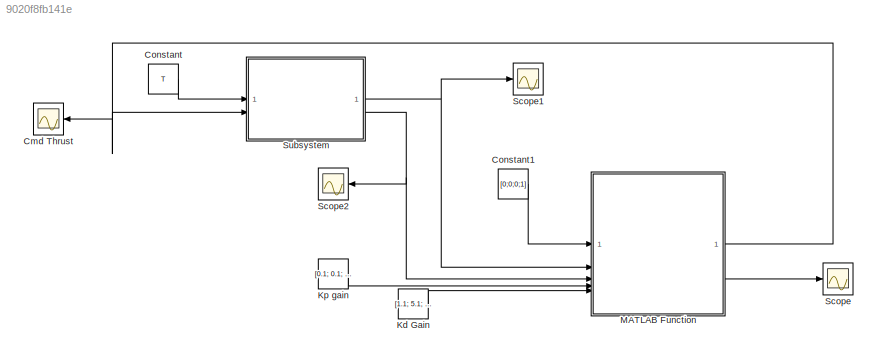
MODEL slx_9020f8fb141e
KIND model
CONFIG AbsTol = auto
CONFIG EnableMultiTasking = off
CONFIG FixedStep = auto
CONFIG MaxStep = auto
CONFIG MinStep = auto
CONFIG RelTol = 1e-3
CONFIG SampleTimeConstraint = Unconstrained
CONFIG SolverName = VariableStepAuto
CONFIG StartTime = 0.0
CONFIG StopTime = orbital_period
BLOCK [Scope] Cmd Thrust
  Floating = off
  NameLocation = top
  NumInputPorts = 1
  ScopeSpecificationString = Simulink.scopes.TimeScopeBlockCfg('CurrentConfiguration', extmgr.ConfigurationSet(extmgr.Configuration('Core','General UI',true),extmgr.Configuration('Core','Source UI',true),extmgr.Configuration('Sources','WiredSimulink',true,'DataLoggingVariableName','ScopeData1'),extmgr.Configuration('Visuals','Time Domain',true,'SerializedDisplays',{struct('MinYLimReal','-0.10153','MaxYLimReal','0.10524','YLab...<+1451ch>
BLOCK [Constant] Constant
  Value = T
  VectorParams1D = off
BLOCK [Constant] Constant1
  Value = [0;0;0;1]
BLOCK [Constant] Kd Gain
  Value = [1.1; 5.1; 1.1];
BLOCK [Constant] Kp gain
  Value = [0.1; 0.1; 0.1;]
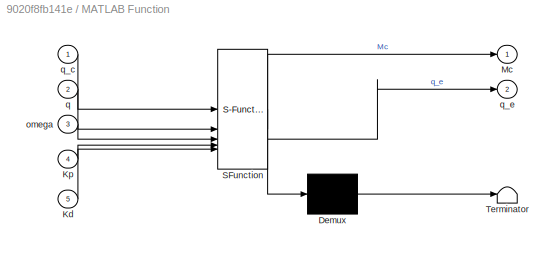
BLOCK [SubSystem] MATLAB Function
  ErrorFcn = Stateflow.Translate.translate
  LibrarySourceBlock = simulink/User-Defined\nFunctions/MATLAB Function
  PermitHierarchicalResolution = ExplicitOnly
  SFBlockType = MATLAB Function
  TreatAsAtomicUnit = on
BLOCK [Demux] MATLAB Function/ Demux 
  Outputs = 1
BLOCK [S-Function] MATLAB Function/ SFunction 
  EnableBusSupport = on
  FunctionName = sf_sfun
  PortCounts = [5 3]
  SFcnIsStateOwnerBlock = off
  SFunctionDeploymentMode = off
  Tag = Stateflow S-Function 1
BLOCK [Terminator] MATLAB Function/ Terminator 
BLOCK [Inport] MATLAB Function/Kd
  Port = 5
BLOCK [Inport] MATLAB Function/Kp
  Port = 4
BLOCK [Outport] MATLAB Function/Mc
BLOCK [Inport] MATLAB Function/omega
  Port = 3
BLOCK [Inport] MATLAB Function/q
  Port = 2
BLOCK [Inport] MATLAB Function/q_c
BLOCK [Outport] MATLAB Function/q_e
  Port = 2
BLOCK [Scope] Scope
  Floating = off
  NumInputPorts = 1
  ScopeSpecificationString = Simulink.scopes.TimeScopeBlockCfg('CurrentConfiguration', extmgr.ConfigurationSet(extmgr.Configuration('Core','General UI',true),extmgr.Configuration('Core','Source UI',true),extmgr.Configuration('Sources','WiredSimulink',true),extmgr.Configuration('Visuals','Time Domain',true,'SerializedDisplays',{struct('MinYLimReal','-1.22177','MaxYLimReal','1.10776','YLabelReal','','MinYLimMag','0.00000','MaxY...<+1446ch>
BLOCK [Scope] Scope1
  Floating = off
  NumInputPorts = 1
  ScopeSpecificationString = Simulink.scopes.TimeScopeBlockCfg('CurrentConfiguration', extmgr.ConfigurationSet(extmgr.Configuration('Core','General UI',true),extmgr.Configuration('Core','Source UI',true),extmgr.Configuration('Sources','WiredSimulink',true,'DataLoggingVariableName','ScopeData2'),extmgr.Configuration('Visuals','Time Domain',true,'SerializedDisplays',{struct('MinYLimReal','-1.12454','MaxYLimReal','1.22363','YLab...<+1446ch>
BLOCK [Scope] Scope2
  Floating = off
  NameLocation = top
  NumInputPorts = 1
  ScopeSpecificationString = Simulink.scopes.TimeScopeBlockCfg('CurrentConfiguration', extmgr.ConfigurationSet(extmgr.Configuration('Core','General UI',true),extmgr.Configuration('Core','Source UI',true),extmgr.Configuration('Sources','WiredSimulink',true,'DataLoggingVariableName','ScopeData3'),extmgr.Configuration('Visuals','Time Domain',true,'SerializedDisplays',{struct('MinYLimReal','-0.03356','MaxYLimReal','0.0275','YLabe...<+1428ch>
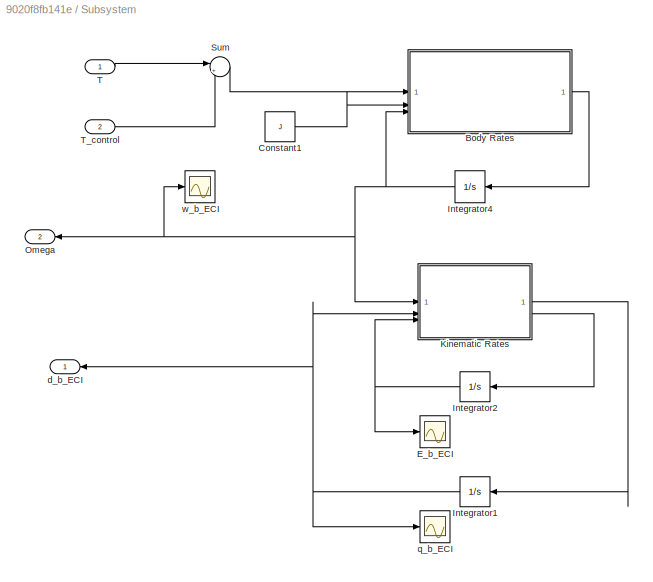
BLOCK [SubSystem] Subsystem
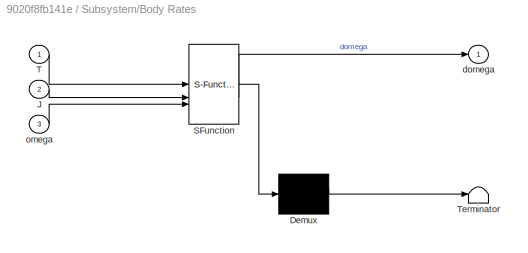
BLOCK [SubSystem] Subsystem/Body Rates
  ErrorFcn = Stateflow.Translate.translate
  PermitHierarchicalResolution = ExplicitOnly
  SFBlockType = MATLAB Function
  TreatAsAtomicUnit = on
BLOCK [Demux] Subsystem/Body Rates/ Demux 
  Outputs = 1
BLOCK [S-Function] Subsystem/Body Rates/ SFunction 
  EnableBusSupport = on
  FunctionName = sf_sfun
  PortCounts = [3 2]
  SFcnIsStateOwnerBlock = off
  SFunctionDeploymentMode = off
  Tag = Stateflow S-Function 6
BLOCK [Terminator] Subsystem/Body Rates/ Terminator 
BLOCK [Inport] Subsystem/Body Rates/J
  Port = 2
BLOCK [Inport] Subsystem/Body Rates/T
BLOCK [Outport] Subsystem/Body Rates/domega
  VectorParamsAs1DForOutWhenUnconnected = off
BLOCK [Inport] Subsystem/Body Rates/omega
  Port = 3
BLOCK [Constant] Subsystem/Constant1
  Value = J
BLOCK [Scope] Subsystem/E_b_ECI
  Floating = off
  NumInputPorts = 1
  ScopeSpecificationString = Simulink.scopes.TimeScopeBlockCfg('CurrentConfiguration', extmgr.ConfigurationSet(extmgr.Configuration('Core','General UI',true),extmgr.Configuration('Core','Source UI',true),extmgr.Configuration('Sources','WiredSimulink',true,'DataLoggingVariableName','E_b_ECI','DataLogging',true,'DataLoggingSaveFormat','Array'),extmgr.Configuration('Visuals','Time Domain',true,'SerializedDisplays',{struct('MinYL...<+1515ch>
BLOCK [Integrator] Subsystem/Integrator1
  InitialCondition = q_b_ECI_0
BLOCK [Integrator] Subsystem/Integrator2
  InitialCondition = E_b_ECI_0
BLOCK [Integrator] Subsystem/Integrator4
  InitialCondition = w_b_ECI_0
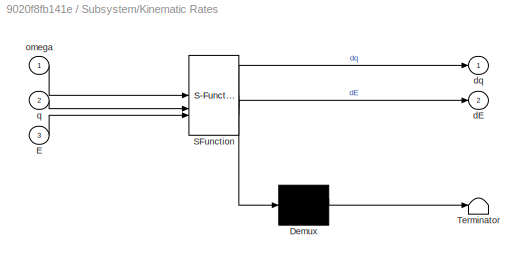
BLOCK [SubSystem] Subsystem/Kinematic Rates
  ErrorFcn = Stateflow.Translate.translate
  PermitHierarchicalResolution = ExplicitOnly
  SFBlockType = MATLAB Function
  TreatAsAtomicUnit = on
BLOCK [Demux] Subsystem/Kinematic Rates/ Demux 
  Outputs = 1
BLOCK [S-Function] Subsystem/Kinematic Rates/ SFunction 
  EnableBusSupport = on
  FunctionName = sf_sfun
  PortCounts = [3 3]
  SFcnIsStateOwnerBlock = off
  SFunctionDeploymentMode = off
  Tag = Stateflow S-Function 5
BLOCK [Terminator] Subsystem/Kinematic Rates/ Terminator 
BLOCK [Inport] Subsystem/Kinematic Rates/E
  Port = 3
BLOCK [Outport] Subsystem/Kinematic Rates/dE
  Port = 2
  VectorParamsAs1DForOutWhenUnconnected = off
BLOCK [Outport] Subsystem/Kinematic Rates/dq
  VectorParamsAs1DForOutWhenUnconnected = off
BLOCK [Inport] Subsystem/Kinematic Rates/omega
BLOCK [Inport] Subsystem/Kinematic Rates/q
  Port = 2
BLOCK [Outport] Subsystem/Omega
  Port = 2
BLOCK [Sum] Subsystem/Sum
  Inputs = |++
BLOCK [Inport] Subsystem/T
BLOCK [Inport] Subsystem/T_control
  Port = 2
BLOCK [Outport] Subsystem/d_b_ECI
BLOCK [Scope] Subsystem/q_b_ECI
  Floating = off
  NumInputPorts = 1
  ScopeSpecificationString = Simulink.scopes.TimeScopeBlockCfg('CurrentConfiguration', extmgr.ConfigurationSet(extmgr.Configuration('Core','General UI',true),extmgr.Configuration('Core','Source UI',true),extmgr.Configuration('Sources','WiredSimulink',true,'DataLoggingVariableName','q_b_ECI','DataLogging',true,'DataLoggingSaveFormat','Array'),extmgr.Configuration('Visuals','Time Domain',true,'SerializedDisplays',{struct('MinYL...<+1527ch>
BLOCK [Scope] Subsystem/w_b_ECI
  Floating = off
  NumInputPorts = 1
  ScopeSpecificationString = Simulink.scopes.TimeScopeBlockCfg('CurrentConfiguration', extmgr.ConfigurationSet(extmgr.Configuration('Core','General UI',true),extmgr.Configuration('Core','Source UI',true),extmgr.Configuration('Sources','WiredSimulink',true,'DataLoggingVariableName','w_b_ECI','DataLogging',true,'DataLoggingSaveFormat','Array'),extmgr.Configuration('Visuals','Time Domain',true,'SerializedDisplays',{struct('MinYL...<+1509ch>
LINE Constant1:1 -> MATLAB Function:1
LINE Constant:1 -> Subsystem:1
LINE Kd Gain:1 -> MATLAB Function:5
LINE Kp gain:1 -> MATLAB Function:4
NET MATLAB Function:1 -> Cmd Thrust:1, Subsystem:2
LINE MATLAB Function:2 -> Scope:1
LINE Subsystem/Body Rates:1 -> Subsystem/Integrator4:1
LINE Subsystem/Constant1:1 -> Subsystem/Body Rates:2
NET Subsystem/Integrator1:1 -> Subsystem/Kinematic Rates:2, Subsystem/d_b_ECI:1, Subsystem/q_b_ECI:1
NET Subsystem/Integrator2:1 -> Subsystem/E_b_ECI:1, Subsystem/Kinematic Rates:3
NET Subsystem/Integrator4:1 -> Subsystem/Body Rates:3, Subsystem/Kinematic Rates:1, Subsystem/Omega:1, Subsystem/w_b_ECI:1
LINE Subsystem/Kinematic Rates:1 -> Subsystem/Integrator1:1
LINE Subsystem/Kinematic Rates:2 -> Subsystem/Integrator2:1
LINE Subsystem/Sum:1 -> Subsystem/Body Rates:1
LINE Subsystem/T:1 -> Subsystem/Sum:1
LINE Subsystem/T_control:1 -> Subsystem/Sum:2
NET Subsystem:1 -> MATLAB Function:2, Scope1:1
NET Subsystem:2 -> MATLAB Function:3, Scope2:1
note: NET lines group one-source signal fan-out (src -> all destinations, sorted); 1:1 wires keep LINE
CHART MATLAB Function states=1 transitions=1
  STATE_LABEL 'eML_blk_kernel()'
  STATE_LABEL 'SCRIPT:\nfunction [Mc, q_e] = controller(q_c, q, omega, Kp, Kd)\n% q_e = quatMult(q, quatConjugate(q_c));\n% Compute the conjugate of q_c\nq_c_conj = [q_c(1), -q_c(2), -q_c(3), -q_c(4)];\n\n% Compute the quaternion multiplication q * q_c_conj\nq0 = q(1); q1 = q(2); q2 = q(3); q3 = q(4);\np0 = q_c_conj(1); p1 = q_c_conj(2); p2 = q_c_conj(3); p3 = q_c_conj(4);\nq1 = q0 * p0 - q1 * p1 - q2 * p2 - q3 * p3;\nq2 ...<+188ch>'
CHART Subsystem/Kinematic Rates states=1 transitions=1
  STATE_LABEL 'eML_blk_kernel()'
  STATE_LABEL 'SCRIPT:\nfunction [dq,dE] = kinematics(omega, q, E)\n%#codegen\n\nI = eye(3); %Identity\n\n% unpack quaternion\neps1 = q(1);\neps2 = q(2);\neps3 = q(3);\neps = [eps1; eps2; eps3];\n\neda = q(4);\n\n% compute the derivative of the quaternion components here\n             \n%Quaternion rates Eq.1.56\neps_cross = [0,  -eps3, eps2;\n             eps3,  0, -eps1;\n             -eps2, eps1, 0];\n\ndeps = 0.5*(eda*I + eps_cr...<+333ch>'
CHART Subsystem/Body Rates states=1 transitions=1
  STATE_LABEL 'eML_blk_kernel()'
  STATE_LABEL 'SCRIPT:\nfunction domega = dynamics(T, J, omega)\n%#codegen\n\n\n% Compute the derivative of the angular velocity $\\omega$ here\n\ndomega = J \\ (T - cross(-omega, J*omega));\n\n% phi = omega(1);\n% theta = omega(2);\n% psi = omega(3);\n% \n% %From body to euler rates\n% matrix = [1 sin(phi)*tan(theta) cos(phi)*tan(theta);\n%           0    cos(phi)            -sin(phi);\n%           0 sin(phi)*sec(theta) cos(phi)...<+48ch>'
CHART  states=0 transitions=0
CHART  states=0 transitions=0
CHART  states=0 transitions=0
